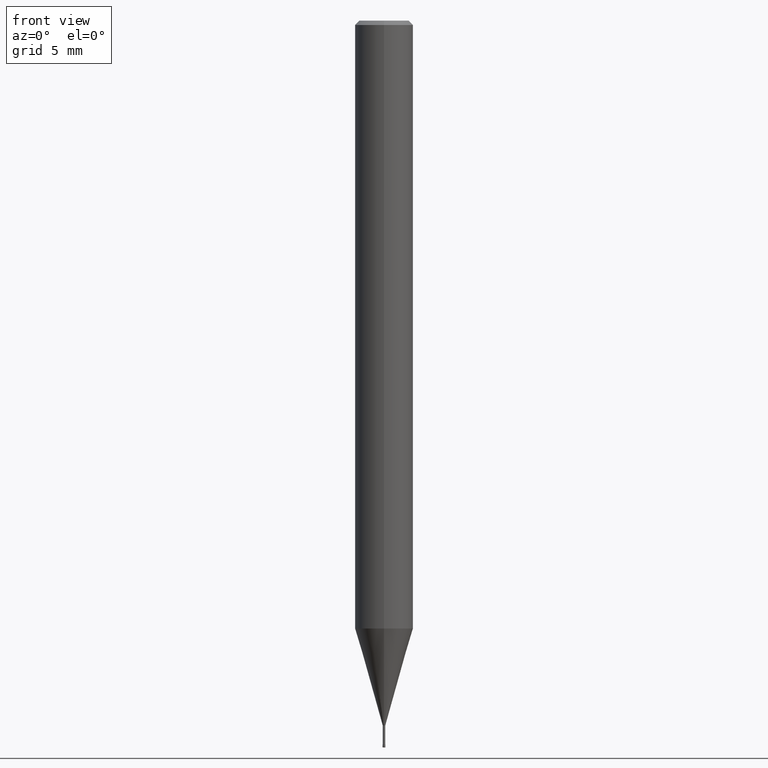
[diagram: clean part render]
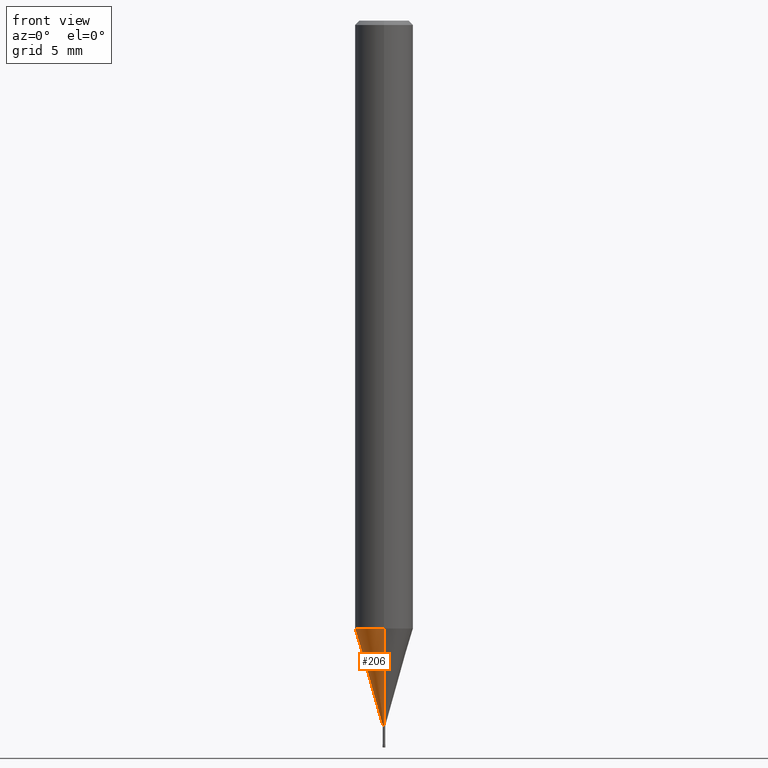
[diagram: same view with one face highlighted and labeled with its STEP entity id]
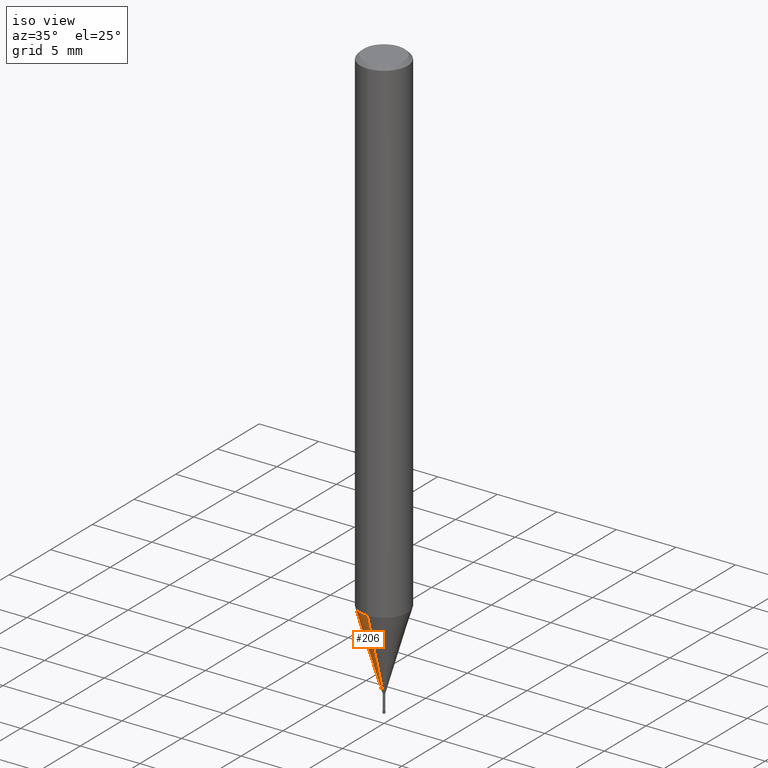
[diagram: same view with one face highlighted and labeled with its STEP entity id]
A machine part, front view. The second image highlights one B-rep face of the part: STEP entity #206.
A second angle (iso view) of the same face is appended — the face is thin or edge-on in the first view.
In plain terms, the highlighted conical surface has half-angle 16.001 deg.
Its self-contained STEP definition (entity closure, byte-faithful):
#106=EDGE_CURVE('',#208,#222,#260,.T.);
#116=EDGE_CURVE('',#146,#222,#273,.T.);
#140=EDGE_CURVE('',#232,#208,#301,.T.);
#146=VERTEX_POINT('',#308);
#206=ADVANCED_FACE('',(#375),#376,.T.);
#208=VERTEX_POINT('',#378);
#222=VERTEX_POINT('',#393);
#226=EDGE_CURVE('',#146,#232,#397,.T.);
#232=VERTEX_POINT('',#403);
#260=LINE('',#426,#427);
#273=CIRCLE('',#444,0.08495);
#301=CIRCLE('',#478,1.99995);
#308=CARTESIAN_POINT('',(1.04030309757211E-017,-0.08495,-48.5));
#375=FACE_OUTER_BOUND('',#569,.T.);
#376=CONICAL_SURFACE('',#570,1.04245,0.279268497676986);
#378=CARTESIAN_POINT('',(0.0,1.99995,-41.822));
#393=CARTESIAN_POINT('',(0.0,0.08495,-48.5));
#397=LINE('',#596,#597);
#403=CARTESIAN_POINT('',(2.44915147732706E-016,-1.99995,-41.822));
#426=CARTESIAN_POINT('',(-1.27659089354214E-016,1.04245,-45.161));
#427=VECTOR('',#620,1.0);
#444=AXIS2_PLACEMENT_3D('',#641,#642,#643);
#478=AXIS2_PLACEMENT_3D('',#681,#682,#683);
#569=EDGE_LOOP('',(#775,#776,#777,#778));
#570=AXIS2_PLACEMENT_3D('',#779,#780,#781);
#596=CARTESIAN_POINT('',(1.27659089354214E-016,-1.04245,-45.161));
#597=VECTOR('',#802,1.0);
#620=DIRECTION('',(3.37565876916665E-017,-0.275652560402792,-0.961257335963365));
#641=CARTESIAN_POINT('',(0.0,0.0,-48.5));
#642=DIRECTION('',(0.0,0.0,-1.0));
#643=DIRECTION('',(0.0,1.0,0.0));
#681=CARTESIAN_POINT('',(0.0,0.0,-41.822));
#682=DIRECTION('',(0.0,0.0,-1.0));
#683=DIRECTION('',(0.0,1.0,0.0));
#775=ORIENTED_EDGE('',*,*,#106,.T.);
#776=ORIENTED_EDGE('',*,*,#116,.F.);
#777=ORIENTED_EDGE('',*,*,#226,.T.);
#778=ORIENTED_EDGE('',*,*,#140,.T.);
#779=CARTESIAN_POINT('',(0.0,0.0,-45.161));
#780=DIRECTION('',(-0.0,-0.0,1.0));
#781=DIRECTION('',(0.0,1.0,0.0));
#802=DIRECTION('',(3.37565876916665E-017,-0.275652560402792,0.961257335963365));